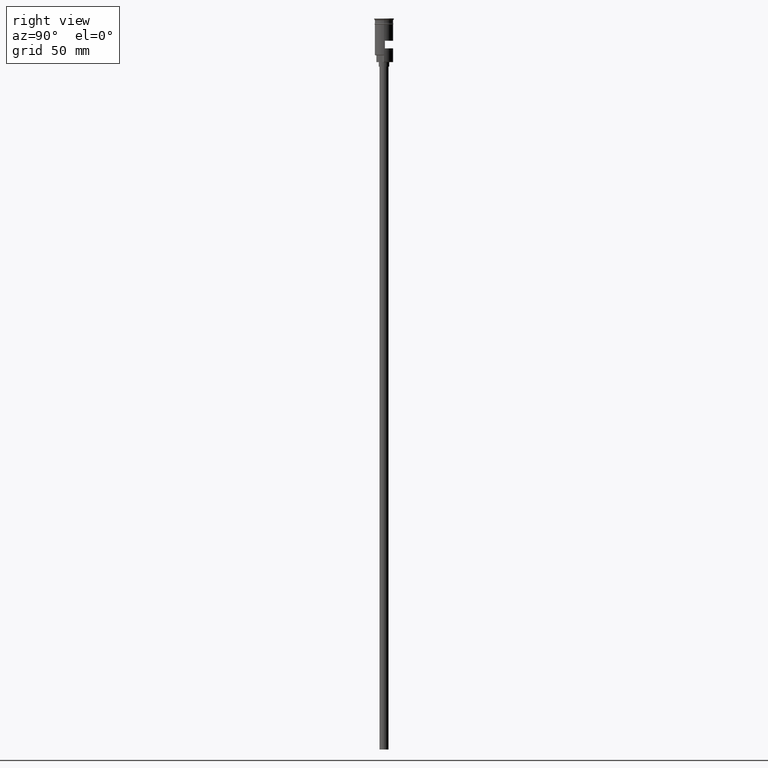
[diagram: clean part render]
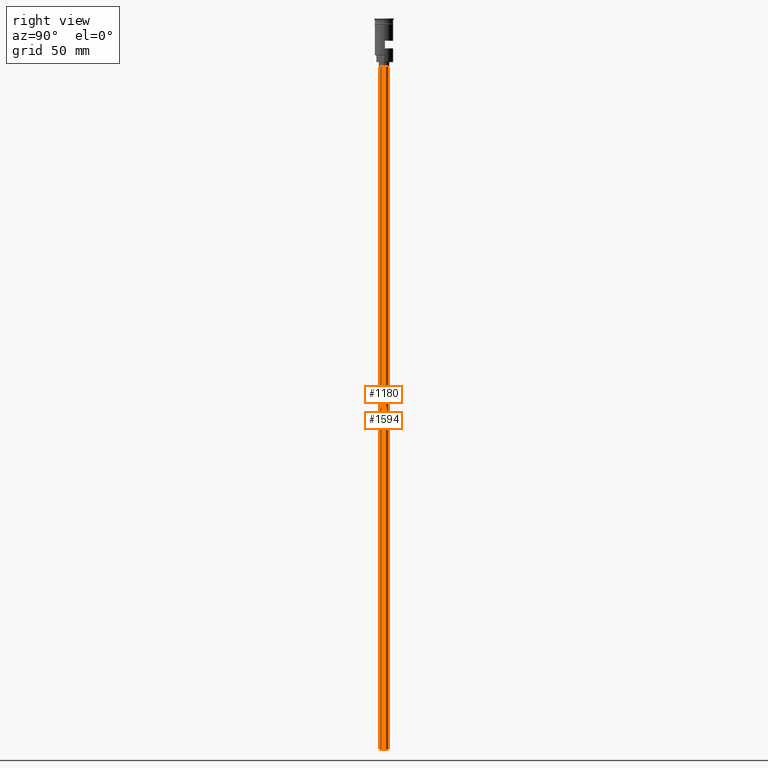
[diagram: same view with one multi-face feature highlighted, each face labeled with its STEP entity id]
A machine part, right view. The highlighted faces form ONE feature: a constant-radius fillet chain: 2 tangent blend faces with common blend radius 3 mm. The faces share edges in the B-rep.
Their STEP definitions:
[1] entity #1180 (Cylinder):
#19 = ORIENTED_EDGE ( 'NONE', *, *, #709, .F. ) ;
#26 = VECTOR ( 'NONE', #1568, 1000.000000000000000 ) ;
#109 = CARTESIAN_POINT ( 'NONE',  ( 0.000000000000000000, 0.000000000000000000, -478.5000000000000568 ) ) ;
#175 = DIRECTION ( 'NONE',  ( -1.000000000000000000, 0.000000000000000000, 0.000000000000000000 ) ) ;
#188 = EDGE_CURVE ( 'NONE', #1571, #1603, #620, .T. ) ;
#192 = CARTESIAN_POINT ( 'NONE',  ( -3.000000000000000444, 3.673940397442060361E-16, -478.5000000000000568 ) ) ;
#209 = LINE ( 'NONE', #1210, #26 ) ;
#212 = CARTESIAN_POINT ( 'NONE',  ( 3.000000000000000444, 0.000000000000000000, -478.5000000000000568 ) ) ;
#248 = DIRECTION ( 'NONE',  ( -0.000000000000000000, -0.000000000000000000, 1.000000000000000000 ) ) ;
#269 = AXIS2_PLACEMENT_3D ( 'NONE', #109, #248, #850 ) ;
#293 = CARTESIAN_POINT ( 'NONE',  ( 3.000000000000000444, 0.000000000000000000, -478.5000000000000568 ) ) ;
#335 = ORIENTED_EDGE ( 'NONE', *, *, #1281, .T. ) ;
#424 = AXIS2_PLACEMENT_3D ( 'NONE', #1000, #1573, #1358 ) ;
#459 = CIRCLE ( 'NONE', #424, 3.000000000000000444 ) ;
#463 = CIRCLE ( 'NONE', #1360, 3.000000000000000444 ) ;
#620 = LINE ( 'NONE', #212, #1516 ) ;
#635 = VERTEX_POINT ( 'NONE', #192 ) ;
#676 = CARTESIAN_POINT ( 'NONE',  ( -3.000000000000000444, 3.673940397442060361E-16, -31.50000000000000000 ) ) ;
#709 = EDGE_CURVE ( 'NONE', #635, #1576, #209, .T. ) ;
#751 = CARTESIAN_POINT ( 'NONE',  ( 3.000000000000000444, 0.000000000000000000, -31.50000000000000000 ) ) ;
#838 = DIRECTION ( 'NONE',  ( 0.000000000000000000, 0.000000000000000000, -1.000000000000000000 ) ) ;
#850 = DIRECTION ( 'NONE',  ( 1.000000000000000000, 0.000000000000000000, 0.000000000000000000 ) ) ;
#865 = DIRECTION ( 'NONE',  ( -0.000000000000000000, -0.000000000000000000, 1.000000000000000000 ) ) ;
#1000 = CARTESIAN_POINT ( 'NONE',  ( 0.000000000000000000, 0.000000000000000000, -31.50000000000000000 ) ) ;
#1095 = EDGE_LOOP ( 'NONE', ( #19, #1243, #1400, #335 ) ) ;
#1131 = CYLINDRICAL_SURFACE ( 'NONE', #269, 3.000000000000000444 ) ;
#1180 = ADVANCED_FACE ( 'NONE', ( #1581 ), #1131, .T. ) ;
#1210 = CARTESIAN_POINT ( 'NONE',  ( -3.000000000000000444, 3.673940397442060361E-16, -478.5000000000000568 ) ) ;
#1243 = ORIENTED_EDGE ( 'NONE', *, *, #1574, .F. ) ;
#1281 = EDGE_CURVE ( 'NONE', #1603, #1576, #459, .T. ) ;
#1294 = CARTESIAN_POINT ( 'NONE',  ( 0.000000000000000000, 0.000000000000000000, -478.5000000000000568 ) ) ;
#1358 = DIRECTION ( 'NONE',  ( -1.000000000000000000, 0.000000000000000000, 0.000000000000000000 ) ) ;
#1360 = AXIS2_PLACEMENT_3D ( 'NONE', #1294, #838, #175 ) ;
#1400 = ORIENTED_EDGE ( 'NONE', *, *, #188, .T. ) ;
#1516 = VECTOR ( 'NONE', #865, 1000.000000000000000 ) ;
#1568 = DIRECTION ( 'NONE',  ( -0.000000000000000000, -0.000000000000000000, 1.000000000000000000 ) ) ;
#1571 = VERTEX_POINT ( 'NONE', #293 ) ;
#1573 = DIRECTION ( 'NONE',  ( 0.000000000000000000, 0.000000000000000000, -1.000000000000000000 ) ) ;
#1574 = EDGE_CURVE ( 'NONE', #1571, #635, #463, .T. ) ;
#1576 = VERTEX_POINT ( 'NONE', #676 ) ;
#1581 = FACE_OUTER_BOUND ( 'NONE', #1095, .T. ) ;
#1603 = VERTEX_POINT ( 'NONE', #751 ) ;
[2] entity #1594 (Cylinder):
#6 = AXIS2_PLACEMENT_3D ( 'NONE', #442, #1190, #330 ) ;
#26 = VECTOR ( 'NONE', #1568, 1000.000000000000000 ) ;
#60 = CIRCLE ( 'NONE', #1188, 3.000000000000000444 ) ;
#64 = ORIENTED_EDGE ( 'NONE', *, *, #141, .T. ) ;
#136 = ORIENTED_EDGE ( 'NONE', *, *, #709, .T. ) ;
#141 = EDGE_CURVE ( 'NONE', #1576, #1603, #60, .T. ) ;
#188 = EDGE_CURVE ( 'NONE', #1571, #1603, #620, .T. ) ;
#192 = CARTESIAN_POINT ( 'NONE',  ( -3.000000000000000444, 3.673940397442060361E-16, -478.5000000000000568 ) ) ;
#209 = LINE ( 'NONE', #1210, #26 ) ;
#212 = CARTESIAN_POINT ( 'NONE',  ( 3.000000000000000444, 0.000000000000000000, -478.5000000000000568 ) ) ;
#220 = DIRECTION ( 'NONE',  ( -0.000000000000000000, -0.000000000000000000, 1.000000000000000000 ) ) ;
#244 = DIRECTION ( 'NONE',  ( 1.000000000000000000, 0.000000000000000000, 0.000000000000000000 ) ) ;
#289 = ORIENTED_EDGE ( 'NONE', *, *, #1499, .F. ) ;
#293 = CARTESIAN_POINT ( 'NONE',  ( 3.000000000000000444, 0.000000000000000000, -478.5000000000000568 ) ) ;
#330 = DIRECTION ( 'NONE',  ( -1.000000000000000000, 0.000000000000000000, 0.000000000000000000 ) ) ;
#442 = CARTESIAN_POINT ( 'NONE',  ( 0.000000000000000000, 0.000000000000000000, -478.5000000000000568 ) ) ;
#474 = DIRECTION ( 'NONE',  ( -1.000000000000000000, 0.000000000000000000, 0.000000000000000000 ) ) ;
#479 = CARTESIAN_POINT ( 'NONE',  ( 0.000000000000000000, 0.000000000000000000, -478.5000000000000568 ) ) ;
#620 = LINE ( 'NONE', #212, #1516 ) ;
#635 = VERTEX_POINT ( 'NONE', #192 ) ;
#668 = AXIS2_PLACEMENT_3D ( 'NONE', #479, #220, #244 ) ;
#676 = CARTESIAN_POINT ( 'NONE',  ( -3.000000000000000444, 3.673940397442060361E-16, -31.50000000000000000 ) ) ;
#709 = EDGE_CURVE ( 'NONE', #635, #1576, #209, .T. ) ;
#721 = CIRCLE ( 'NONE', #6, 3.000000000000000444 ) ;
#751 = CARTESIAN_POINT ( 'NONE',  ( 3.000000000000000444, 0.000000000000000000, -31.50000000000000000 ) ) ;
#864 = EDGE_LOOP ( 'NONE', ( #289, #136, #64, #1278 ) ) ;
#865 = DIRECTION ( 'NONE',  ( -0.000000000000000000, -0.000000000000000000, 1.000000000000000000 ) ) ;
#1056 = FACE_OUTER_BOUND ( 'NONE', #864, .T. ) ;
#1106 = CYLINDRICAL_SURFACE ( 'NONE', #668, 3.000000000000000444 ) ;
#1125 = DIRECTION ( 'NONE',  ( 0.000000000000000000, 0.000000000000000000, -1.000000000000000000 ) ) ;
#1188 = AXIS2_PLACEMENT_3D ( 'NONE', #1572, #1125, #474 ) ;
#1190 = DIRECTION ( 'NONE',  ( 0.000000000000000000, 0.000000000000000000, -1.000000000000000000 ) ) ;
#1210 = CARTESIAN_POINT ( 'NONE',  ( -3.000000000000000444, 3.673940397442060361E-16, -478.5000000000000568 ) ) ;
#1278 = ORIENTED_EDGE ( 'NONE', *, *, #188, .F. ) ;
#1499 = EDGE_CURVE ( 'NONE', #635, #1571, #721, .T. ) ;
#1516 = VECTOR ( 'NONE', #865, 1000.000000000000000 ) ;
#1568 = DIRECTION ( 'NONE',  ( -0.000000000000000000, -0.000000000000000000, 1.000000000000000000 ) ) ;
#1571 = VERTEX_POINT ( 'NONE', #293 ) ;
#1572 = CARTESIAN_POINT ( 'NONE',  ( 0.000000000000000000, 0.000000000000000000, -31.50000000000000000 ) ) ;
#1576 = VERTEX_POINT ( 'NONE', #676 ) ;
#1594 = ADVANCED_FACE ( 'NONE', ( #1056 ), #1106, .T. ) ;
#1603 = VERTEX_POINT ( 'NONE', #751 ) ;